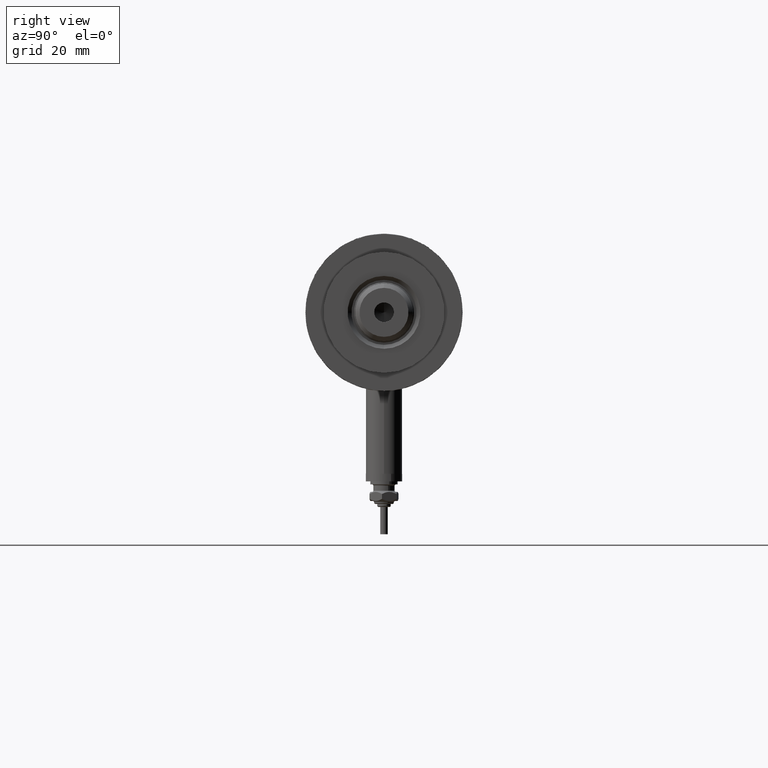
[diagram: clean part render]
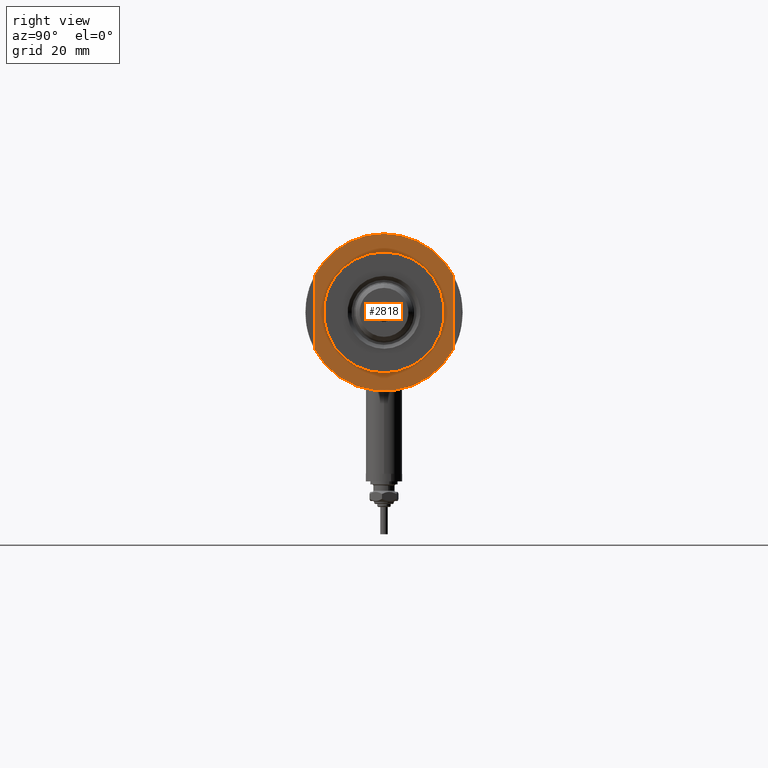
[diagram: same view with one face highlighted and labeled with its STEP entity id]
A machine part, right view. The second image highlights one B-rep face of the part: STEP entity #2818.
In plain terms, the highlighted planar face has unit normal (1, 0, -0).
Its self-contained STEP definition (entity closure, byte-faithful):
#14 = EDGE_CURVE ( 'NONE', #4029, #3805, #692, .T. ) ;
#232 = CARTESIAN_POINT ( 'NONE',  ( -12.12435565298215145, 23.00000000000000355, 15.50000000000000000 ) ) ;
#578 = CARTESIAN_POINT ( 'NONE',  ( -26.00000000000000355, 0.000000000000000000, 15.50000000000000000 ) ) ;
#641 = EDGE_CURVE ( 'NONE', #4029, #4749, #651, .T. ) ;
#651 = LINE ( 'NONE', #232, #5016 ) ;
#692 = CIRCLE ( 'NONE', #1421, 26.00000000000000355 ) ;
#752 = VERTEX_POINT ( 'NONE', #4756 ) ;
#786 = ORIENTED_EDGE ( 'NONE', *, *, #4933, .T. ) ;
#820 = ORIENTED_EDGE ( 'NONE', *, *, #14, .T. ) ;
#861 = CARTESIAN_POINT ( 'NONE',  ( 12.12435565298215323, -22.99999999999999645, 15.50000000000000000 ) ) ;
#885 = PLANE ( 'NONE',  #1536 ) ;
#965 = DIRECTION ( 'NONE',  ( 1.000000000000000000, 0.000000000000000000, 0.000000000000000000 ) ) ;
#1117 = DIRECTION ( 'NONE',  ( 1.000000000000000000, 0.000000000000000000, 0.000000000000000000 ) ) ;
#1397 = CIRCLE ( 'NONE', #3161, 26.00000000000000355 ) ;
#1411 = CARTESIAN_POINT ( 'NONE',  ( 0.000000000000000000, 0.000000000000000000, 15.50000000000000000 ) ) ;
#1421 = AXIS2_PLACEMENT_3D ( 'NONE', #5279, #6156, #2768 ) ;
#1536 = AXIS2_PLACEMENT_3D ( 'NONE', #4368, #3282, #1897 ) ;
#1639 = DIRECTION ( 'NONE',  ( 0.000000000000000000, 0.000000000000000000, 1.000000000000000000 ) ) ;
#1833 = DIRECTION ( 'NONE',  ( 0.000000000000000000, 0.000000000000000000, 1.000000000000000000 ) ) ;
#1897 = DIRECTION ( 'NONE',  ( 1.000000000000000000, 0.000000000000000000, -0.000000000000000000 ) ) ;
#1941 = DIRECTION ( 'NONE',  ( -0.000000000000000000, -0.000000000000000000, -1.000000000000000000 ) ) ;
#2203 = DIRECTION ( 'NONE',  ( 1.000000000000000000, 0.000000000000000000, 0.000000000000000000 ) ) ;
#2298 = VERTEX_POINT ( 'NONE', #861 ) ;
#2387 = ORIENTED_EDGE ( 'NONE', *, *, #6300, .T. ) ;
#2421 = CARTESIAN_POINT ( 'NONE',  ( -12.12435565298214613, 23.00000000000000355, 15.50000000000000000 ) ) ;
#2460 = EDGE_CURVE ( 'NONE', #2298, #4749, #3001, .T. ) ;
#2527 = ORIENTED_EDGE ( 'NONE', *, *, #641, .F. ) ;
#2608 = AXIS2_PLACEMENT_3D ( 'NONE', #4411, #1941, #965 ) ;
#2643 = ORIENTED_EDGE ( 'NONE', *, *, #5985, .F. ) ;
#2655 = VECTOR ( 'NONE', #4794, 1000.000000000000000 ) ;
#2721 = ORIENTED_EDGE ( 'NONE', *, *, #4763, .T. ) ;
#2750 = CARTESIAN_POINT ( 'NONE',  ( 20.00000000000000000, 0.000000000000000000, 15.50000000000000000 ) ) ;
#2768 = DIRECTION ( 'NONE',  ( 1.000000000000000000, 0.000000000000000000, 0.000000000000000000 ) ) ;
#2818 = ADVANCED_FACE ( 'NONE', ( #3927, #3381 ), #885, .T. ) ;
#2851 = DIRECTION ( 'NONE',  ( 1.000000000000000000, 0.000000000000000000, 0.000000000000000000 ) ) ;
#3001 = CIRCLE ( 'NONE', #4621, 26.00000000000000355 ) ;
#3161 = AXIS2_PLACEMENT_3D ( 'NONE', #5971, #1639, #1117 ) ;
#3282 = DIRECTION ( 'NONE',  ( 0.000000000000000000, 0.000000000000000000, 1.000000000000000000 ) ) ;
#3338 = DIRECTION ( 'NONE',  ( -0.000000000000000000, -0.000000000000000000, -1.000000000000000000 ) ) ;
#3339 = CARTESIAN_POINT ( 'NONE',  ( -12.12435565298215145, -22.99999999999999645, 15.50000000000000000 ) ) ;
#3381 = FACE_OUTER_BOUND ( 'NONE', #3792, .T. ) ;
#3722 = AXIS2_PLACEMENT_3D ( 'NONE', #6172, #3338, #2851 ) ;
#3792 = EDGE_LOOP ( 'NONE', ( #2643, #5894, #2527, #820, #2387 ) ) ;
#3805 = VERTEX_POINT ( 'NONE', #578 ) ;
#3927 = FACE_BOUND ( 'NONE', #4584, .T. ) ;
#4029 = VERTEX_POINT ( 'NONE', #2421 ) ;
#4336 = CIRCLE ( 'NONE', #2608, 20.00000000000000000 ) ;
#4368 = CARTESIAN_POINT ( 'NONE',  ( 0.000000000000000000, 0.000000000000000000, 15.50000000000000000 ) ) ;
#4411 = CARTESIAN_POINT ( 'NONE',  ( 0.000000000000000000, 0.000000000000000000, 15.50000000000000000 ) ) ;
#4466 = VERTEX_POINT ( 'NONE', #4894 ) ;
#4584 = EDGE_LOOP ( 'NONE', ( #2721, #786 ) ) ;
#4621 = AXIS2_PLACEMENT_3D ( 'NONE', #1411, #1833, #4820 ) ;
#4749 = VERTEX_POINT ( 'NONE', #5202 ) ;
#4756 = CARTESIAN_POINT ( 'NONE',  ( -12.12435565298215323, -22.99999999999999645, 15.50000000000000000 ) ) ;
#4763 = EDGE_CURVE ( 'NONE', #5352, #4466, #5630, .T. ) ;
#4794 = DIRECTION ( 'NONE',  ( -1.000000000000000000, -0.000000000000000000, -0.000000000000000000 ) ) ;
#4820 = DIRECTION ( 'NONE',  ( 1.000000000000000000, 0.000000000000000000, 0.000000000000000000 ) ) ;
#4894 = CARTESIAN_POINT ( 'NONE',  ( -20.00000000000000000, 2.449293598294706513E-15, 15.50000000000000000 ) ) ;
#4933 = EDGE_CURVE ( 'NONE', #4466, #5352, #4336, .T. ) ;
#5016 = VECTOR ( 'NONE', #2203, 1000.000000000000000 ) ;
#5202 = CARTESIAN_POINT ( 'NONE',  ( 12.12435565298214790, 23.00000000000000355, 15.50000000000000000 ) ) ;
#5271 = LINE ( 'NONE', #3339, #2655 ) ;
#5279 = CARTESIAN_POINT ( 'NONE',  ( 0.000000000000000000, 0.000000000000000000, 15.50000000000000000 ) ) ;
#5352 = VERTEX_POINT ( 'NONE', #2750 ) ;
#5630 = CIRCLE ( 'NONE', #3722, 20.00000000000000000 ) ;
#5894 = ORIENTED_EDGE ( 'NONE', *, *, #2460, .T. ) ;
#5971 = CARTESIAN_POINT ( 'NONE',  ( 0.000000000000000000, 0.000000000000000000, 15.50000000000000000 ) ) ;
#5985 = EDGE_CURVE ( 'NONE', #2298, #752, #5271, .T. ) ;
#6156 = DIRECTION ( 'NONE',  ( 0.000000000000000000, 0.000000000000000000, 1.000000000000000000 ) ) ;
#6172 = CARTESIAN_POINT ( 'NONE',  ( 0.000000000000000000, 0.000000000000000000, 15.50000000000000000 ) ) ;
#6300 = EDGE_CURVE ( 'NONE', #3805, #752, #1397, .T. ) ;